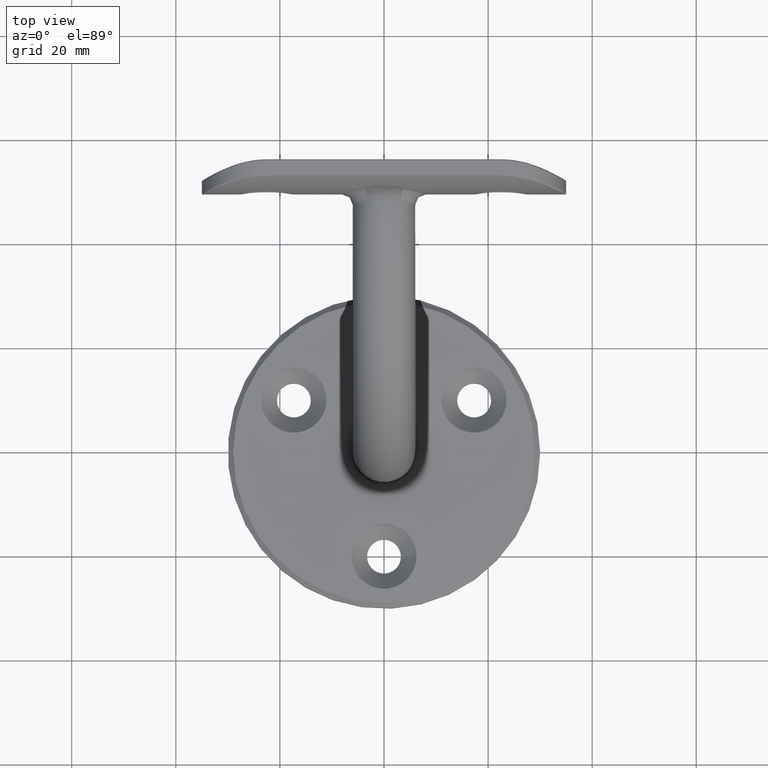
[diagram: clean part render]
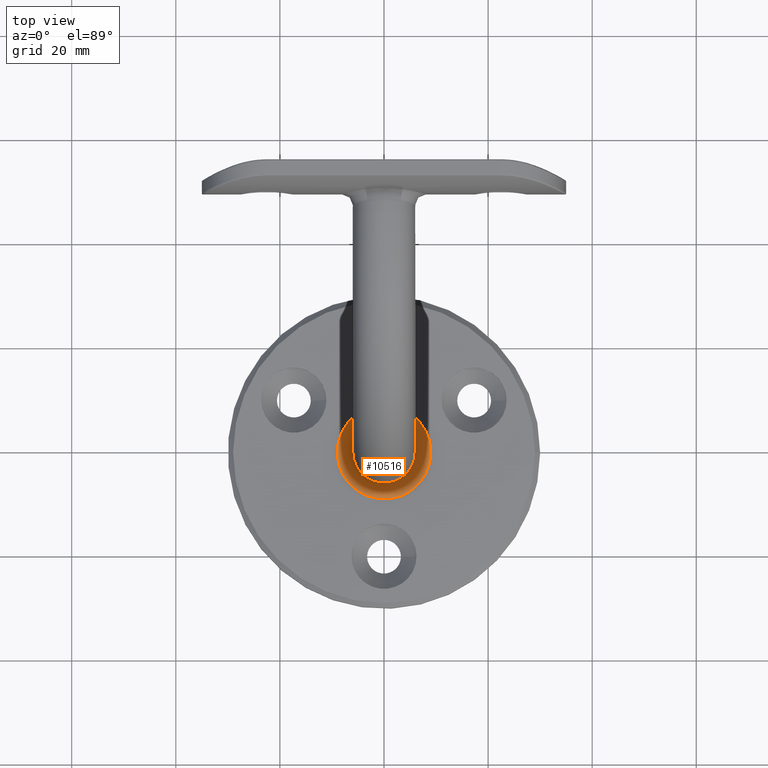
[diagram: same view with one face highlighted and labeled with its STEP entity id]
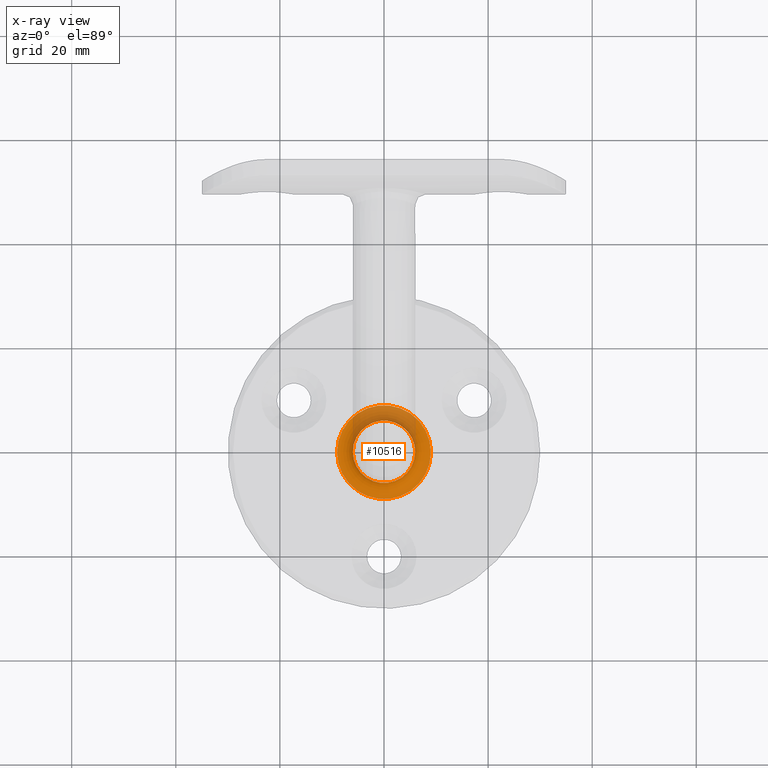
[diagram: x-ray of the same camera — body ghosted, the highlighted face saturated]
A machine part, top view. The second image highlights one B-rep face of the part: STEP entity #10516.
The next image is the same camera in x-ray: the body ghosted, the highlighted face saturated — about 30% of this face is hidden behind the body in this view.
In plain terms, the highlighted toroidal blend (fillet) surface has major radius 9 mm and minor (blend) radius 3 mm.
Its self-contained STEP definition (entity closure, byte-faithful):
#732 = AXIS2_PLACEMENT_3D ( 'NONE', #16349, #9625, #9798 ) ;
#1487 = AXIS2_PLACEMENT_3D ( 'NONE', #13945, #5895, #16699 ) ;
#2077 = FACE_OUTER_BOUND ( 'NONE', #16594, .T. ) ;
#2490 = ORIENTED_EDGE ( 'NONE', *, *, #12078, .F. ) ;
#3126 = TOROIDAL_SURFACE ( 'NONE', #1487, 9.000000000000001776, 3.000000000000000000 ) ;
#5150 = AXIS2_PLACEMENT_3D ( 'NONE', #7685, #17062, #14247 ) ;
#5191 = CIRCLE ( 'NONE', #732, 6.000000000000000888 ) ;
#5306 = CARTESIAN_POINT ( 'NONE',  ( 9.000000000000001776, -1.966019939440382031E-15, 5.500000000000000000 ) ) ;
#5895 = DIRECTION ( 'NONE',  ( 0.000000000000000000, 0.000000000000000000, 1.000000000000000000 ) ) ;
#7685 = CARTESIAN_POINT ( 'NONE',  ( 0.000000000000000000, -1.966019939440382031E-15, 5.500000000000000000 ) ) ;
#9314 = EDGE_CURVE ( 'NONE', #12289, #12289, #12340, .T. ) ;
#9625 = DIRECTION ( 'NONE',  ( 0.000000000000000000, 0.000000000000000000, 1.000000000000000000 ) ) ;
#9798 = DIRECTION ( 'NONE',  ( 1.000000000000000000, 0.000000000000000000, 0.000000000000000000 ) ) ;
#10516 = ADVANCED_FACE ( 'NONE', ( #2077, #12981 ), #3126, .F. ) ;
#12078 = EDGE_CURVE ( 'NONE', #13329, #13329, #5191, .T. ) ;
#12289 = VERTEX_POINT ( 'NONE', #5306 ) ;
#12340 = CIRCLE ( 'NONE', #5150, 9.000000000000001776 ) ;
#12981 = FACE_OUTER_BOUND ( 'NONE', #15079, .T. ) ;
#13329 = VERTEX_POINT ( 'NONE', #16004 ) ;
#13945 = CARTESIAN_POINT ( 'NONE',  ( 0.000000000000000000, -1.966019939440382031E-15, 8.500000000000000000 ) ) ;
#14247 = DIRECTION ( 'NONE',  ( 1.000000000000000000, 0.000000000000000000, 0.000000000000000000 ) ) ;
#15079 = EDGE_LOOP ( 'NONE', ( #2490 ) ) ;
#16004 = CARTESIAN_POINT ( 'NONE',  ( 6.000000000000000888, -1.966019939440382031E-15, 8.500000000000000000 ) ) ;
#16142 = ORIENTED_EDGE ( 'NONE', *, *, #9314, .F. ) ;
#16349 = CARTESIAN_POINT ( 'NONE',  ( 0.000000000000000000, -1.966019939440382031E-15, 8.500000000000000000 ) ) ;
#16594 = EDGE_LOOP ( 'NONE', ( #16142 ) ) ;
#16699 = DIRECTION ( 'NONE',  ( 1.000000000000000000, 0.000000000000000000, 0.000000000000000000 ) ) ;
#17062 = DIRECTION ( 'NONE',  ( -0.000000000000000000, -0.000000000000000000, -1.000000000000000000 ) ) ;